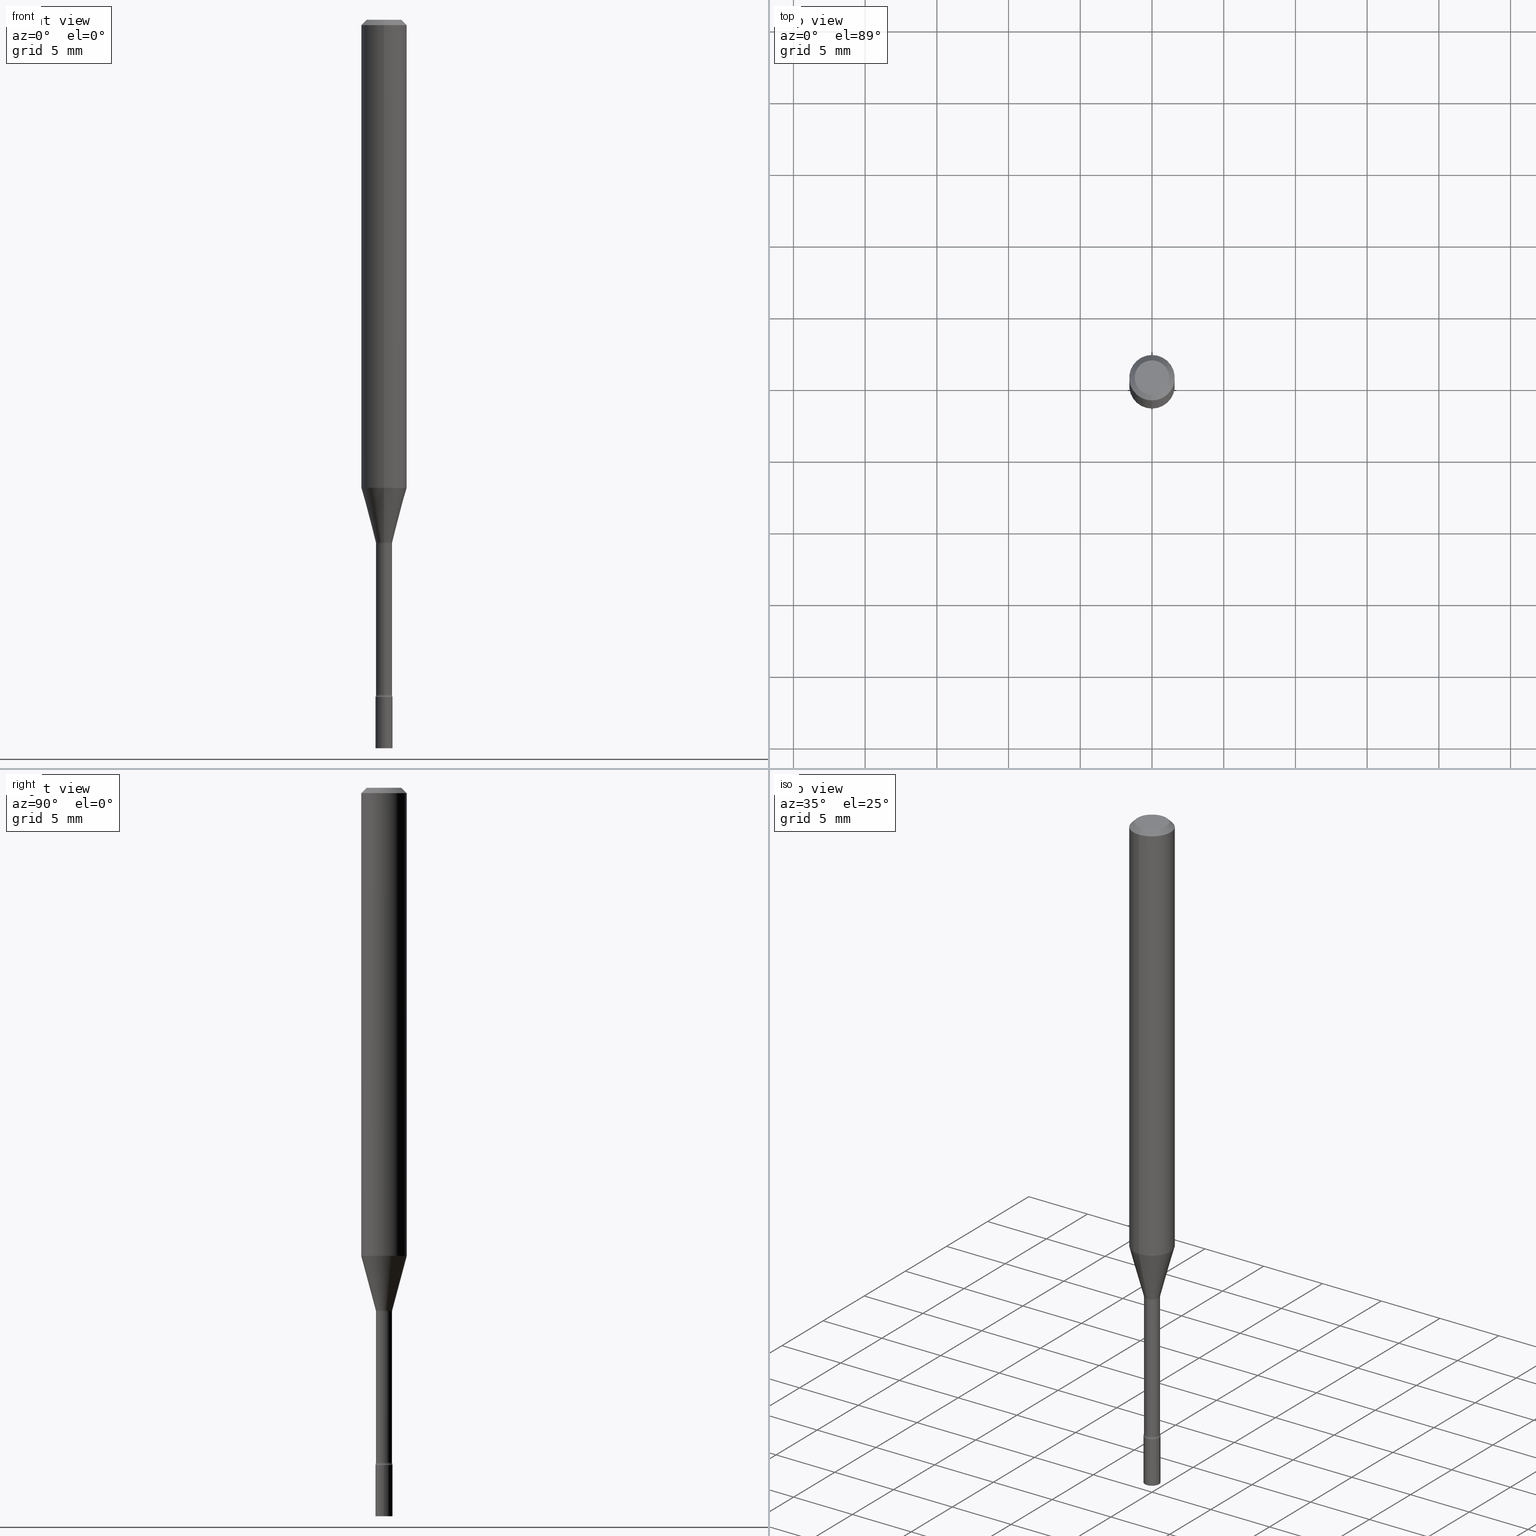
[diagram: canonical four-view strip — front | top / right | iso, engineering-drawing reading convention]
A machine part, canonical four-view strip (front | top / right | iso — engineering-drawing reading convention). The complete STEP part file that produces these views, byte-faithful:
ISO-10303-21;
HEADER;
FILE_DESCRIPTION (( 'STEP AP203' ),
    '1' );
FILE_NAME ('03490.STEP',
    '2024-03-08T21:31:33',
    ( '' ),
    ( '' ),
    'SwSTEP 2.0',
    'SolidWorks 2023',
    '' );
FILE_SCHEMA (( 'CONFIG_CONTROL_DESIGN' ));
ENDSEC;

DATA;
#1 = VERTEX_POINT ( 'NONE', #31 ) ;
#2 = CIRCLE ( 'NONE', #288, 0.02350000000000000352 ) ;
#3 = CARTESIAN_POINT ( 'NONE',  ( 0.000000000000000000, 0.000000000000000000, 0.000000000000000000 ) ) ;
#4 = VERTEX_POINT ( 'NONE', #500 ) ;
#5 = DIRECTION ( 'NONE',  ( -6.982962677686265922E-15, -1.000000000000000000, 3.491509281593031965E-15 ) ) ;
#6 = CLOSED_SHELL ( 'NONE', ( #150, #62, #453, #18 ) ) ;
#7 = AXIS2_PLACEMENT_3D ( 'NONE', #127, #239, #491 ) ;
#8 = CYLINDRICAL_SURFACE ( 'NONE', #52, 0.02210000000000003281 ) ;
#9 = ADVANCED_FACE ( 'NONE', ( #424 ), #347, .F. ) ;
#10 = CARTESIAN_POINT ( 'NONE',  ( 3.840629472727447874E-16, 0.04749999999999999362, -1.947592745229184119E-16 ) ) ;
#11 = CARTESIAN_POINT ( 'NONE',  ( 4.890937612370273194E-29, -6.982962677686291165E-15, -2.000000000000000000 ) ) ;
#12 = DIRECTION ( 'NONE',  ( -6.982962677686265922E-15, -1.000000000000000000, 0.000000000000000000 ) ) ;
#13 = DIRECTION ( 'NONE',  ( -2.445449293867179508E-29, 3.491509281593031965E-15, 1.000000000000000000 ) ) ;
#14 = CIRCLE ( 'NONE', #24, 0.01500000000000002373 ) ;
#15 = CIRCLE ( 'NONE', #255, 0.04749999999999999362 ) ;
#16 = DIRECTION ( 'NONE',  ( -2.445449293867179788E-29, 3.491509281593031965E-15, 1.000000000000000000 ) ) ;
#17 = DIRECTION ( 'NONE',  ( -2.445449293867179788E-29, 3.491509281593031965E-15, 1.000000000000000000 ) ) ;
#18 = ADVANCED_FACE ( 'NONE', ( #425 ), #222, .T. ) ;
#19 = CARTESIAN_POINT ( 'NONE',  ( 3.516494428602184919E-29, -5.020702317126664173E-15, -1.437974787463811133 ) ) ;
#20 = CARTESIAN_POINT ( 'NONE',  ( 2.636113549670322806E-16, 0.03709999999999497727, -1.437974787463811133 ) ) ;
#21 = DIRECTION ( 'NONE',  ( -6.982962677686265922E-15, -1.000000000000000000, 4.370956789862821150E-15 ) ) ;
#22 = DIRECTION ( 'NONE',  ( -6.982962677686265922E-15, -1.000000000000000000, 3.491509281593031965E-15 ) ) ;
#23 = ORIENTED_EDGE ( 'NONE', *, *, #407, .F. ) ;
#24 = AXIS2_PLACEMENT_3D ( 'NONE', #412, #53, #374 ) ;
#25 = DIRECTION ( 'NONE',  ( -6.982962677686265922E-15, -1.000000000000000000, 4.370956789862821150E-15 ) ) ;
#26 = DIRECTION ( 'NONE',  ( -6.982962677686265922E-15, -1.000000000000000000, 3.491509281593031965E-15 ) ) ;
#27 = ORIENTED_EDGE ( 'NONE', *, *, #165, .F. ) ;
#28 = EDGE_CURVE ( 'NONE', #217, #343, #14, .T. ) ;
#29 = ORIENTED_EDGE ( 'NONE', *, *, #244, .F. ) ;
#30 = PERSON_AND_ORGANIZATION ( #90, #296 ) ;
#31 = CARTESIAN_POINT ( 'NONE',  ( 0.02350000000000000352, -7.147062300611918023E-15, -2.000000000000000000 ) ) ;
#32 = DIRECTION ( 'NONE',  ( -2.445449293867179508E-29, 3.491509281593031965E-15, 1.000000000000000000 ) ) ;
#33 = ORIENTED_EDGE ( 'NONE', *, *, #510, .F. ) ;
#34 = APPROVAL_STATUS ( 'not_yet_approved' ) ;
#35 = VERTEX_POINT ( 'NONE', #280 ) ;
#36 = SECURITY_CLASSIFICATION ( '', '', #194 ) ;
#37 = PERSON_AND_ORGANIZATION_ROLE ( 'classification_officer' ) ;
#38 = VECTOR ( 'NONE', #13, 39.37007874015748143 ) ;
#39 = AXIS2_PLACEMENT_3D ( 'NONE', #19, #370, #303 ) ;
#40 = EDGE_CURVE ( 'NONE', #217, #345, #483, .T. ) ;
#41 = EDGE_CURVE ( 'NONE', #434, #390, #481, .T. ) ;
#42 = EDGE_CURVE ( 'NONE', #75, #112, #157, .T. ) ;
#43 = DIRECTION ( 'NONE',  ( 1.000000000000000000, -6.982962677686269866E-15, 0.000000000000000000 ) ) ;
#44 = CARTESIAN_POINT ( 'NONE',  ( 1.570299446030275858E-16, 0.02209999999999498130, -1.437974787463811133 ) ) ;
#45 = EDGE_CURVE ( 'NONE', #340, #299, #195, .T. ) ;
#46 = AXIS2_PLACEMENT_3D ( 'NONE', #86, #50, #208 ) ;
#47 = CARTESIAN_POINT ( 'NONE',  ( 3.668173940800776741E-31, -5.237263922389558597E-17, -0.01500000000000003067 ) ) ;
#48 = DIRECTION ( 'NONE',  ( -6.982962677686265922E-15, -1.000000000000000000, 3.483106191921935554E-15 ) ) ;
#49 = EDGE_LOOP ( 'NONE', ( #177, #264 ) ) ;
#50 = DIRECTION ( 'NONE',  ( -2.445449293867179788E-29, 3.491509281593031965E-15, 1.000000000000000000 ) ) ;
#51 = CARTESIAN_POINT ( 'NONE',  ( -1.640996229255817445E-16, -0.02350000000000649139, -1.858999999999999986 ) ) ;
#52 = AXIS2_PLACEMENT_3D ( 'NONE', #206, #324, #369 ) ;
#53 = DIRECTION ( 'NONE',  ( -1.000000000000000000, 6.982962677686265922E-15, -4.883557194083112340E-29 ) ) ;
#54 = LOCAL_TIME ( 16, 31, 33.00000000000000000, #140 ) ;
#55 = CARTESIAN_POINT ( 'NONE',  ( 3.023754139721055453E-16, 0.02261111260565898395, -1.434092501787273211 ) ) ;
#56 = DIRECTION ( 'NONE',  ( 7.105427357601001859E-15, 1.000000000000000000, 0.000000000000000000 ) ) ;
#57 = DIRECTION ( 'NONE',  ( 1.000000000000000000, -6.982962677686269866E-15, 0.000000000000000000 ) ) ;
#58 = ORIENTED_EDGE ( 'NONE', *, *, #440, .F. ) ;
#59 = EDGE_CURVE ( 'NONE', #345, #340, #73, .T. ) ;
#60 = EDGE_CURVE ( 'NONE', #345, #390, #307, .T. ) ;
#61 = APPLICATION_CONTEXT ( 'configuration controlled 3d designs of mechanical parts and assemblies' ) ;
#62 = ADVANCED_FACE ( 'NONE', ( #330 ), #242, .T. ) ;
#63 = DIRECTION ( 'NONE',  ( -2.445449293867179788E-29, 3.491509281593031965E-15, 1.000000000000000000 ) ) ;
#64 = CYLINDRICAL_SURFACE ( 'NONE', #461, 0.06250000000000000000 ) ;
#65 = AXIS2_PLACEMENT_3D ( 'NONE', #258, #260, #213 ) ;
#66 = CC_DESIGN_APPROVAL ( #358, ( #283 ) ) ;
#67 = ORIENTED_EDGE ( 'NONE', *, *, #492, .T. ) ;
#68 = APPROVAL_DATE_TIME ( #145, #471 ) ;
#69 = ORIENTED_EDGE ( 'NONE', *, *, #355, .F. ) ;
#70 = ORIENTED_EDGE ( 'NONE', *, *, #42, .F. ) ;
#71 = ORIENTED_EDGE ( 'NONE', *, *, #59, .T. ) ;
#72 = DIRECTION ( 'NONE',  ( 0.000000000000000000, 0.000000000000000000, 1.000000000000000000 ) ) ;
#73 = CIRCLE ( 'NONE', #426, 0.06250000000000000000 ) ;
#74 = CALENDAR_DATE ( 2024, 8, 3 ) ;
#75 = VERTEX_POINT ( 'NONE', #401 ) ;
#76 = APPROVAL_ROLE ( '' ) ;
#77 = EDGE_CURVE ( 'NONE', #105, #299, #284, .T. ) ;
#78 = PRODUCT ( '03490', '03490', '', ( #388 ) ) ;
#79 = AXIS2_PLACEMENT_3D ( 'NONE', #415, #411, #56 ) ;
#80 = DIRECTION ( 'NONE',  ( 1.839019923739599526E-15, 0.2588190451025248473, 0.9659258262890673130 ) ) ;
#81 = LINE ( 'NONE', #488, #323 ) ;
#82 = AXIS2_PLACEMENT_3D ( 'NONE', #403, #204, #5 ) ;
#83 = DIRECTION ( 'NONE',  ( -2.445449293867179788E-29, 3.491509281593031965E-15, 1.000000000000000000 ) ) ;
#84 = CARTESIAN_POINT ( 'NONE',  ( 4.364351673553919652E-16, 0.06249999999999995143, -0.01500000000000024751 ) ) ;
#85 = ORIENTED_EDGE ( 'NONE', *, *, #417, .F. ) ;
#86 = CARTESIAN_POINT ( 'NONE',  ( 3.507000495835905088E-29, -5.007147280653236604E-15, -1.434092501787273211 ) ) ;
#87 = CC_DESIGN_PERSON_AND_ORGANIZATION_ASSIGNMENT ( #188, #147, ( #378 ) ) ;
#88 = DIRECTION ( 'NONE',  ( 2.445449293867179508E-29, -3.491509281593031965E-15, -1.000000000000000000 ) ) ;
#89 = DIRECTION ( 'NONE',  ( -2.445449293867179788E-29, 3.491509281593031965E-15, 1.000000000000000000 ) ) ;
#90 = PERSON ( 'UNSPECIFIED', 'UNSPECIFIED', 'UNSPECIFIED', ('UNSPECIFIED'), ('UNSPECIFIED'), ('UNSPECIFIED') ) ;
#91 = DIRECTION ( 'NONE',  ( -2.445468806185136597E-29, 3.491481338843145583E-15, 1.000000000000000000 ) ) ;
#92 = ORIENTED_EDGE ( 'NONE', *, *, #125, .F. ) ;
#93 = VECTOR ( 'NONE', #385, 39.37007874015748143 ) ;
#94 = DIRECTION ( 'NONE',  ( -2.445449293867179788E-29, 3.491509281593031965E-15, 1.000000000000000000 ) ) ;
#95 = CARTESIAN_POINT ( 'NONE',  ( 3.507000495835905088E-29, -5.007147280653236604E-15, -1.434092501787273211 ) ) ;
#96 = ORIENTED_EDGE ( 'NONE', *, *, #97, .F. ) ;
#97 = EDGE_CURVE ( 'NONE', #427, #4, #436, .T. ) ;
#98 = CARTESIAN_POINT ( 'NONE',  ( 3.316907271900976096E-16, 0.04749999999999999362, -1.803029826992936988E-16 ) ) ;
#99 = CARTESIAN_POINT ( 'NONE',  ( 3.516522486823451947E-29, -5.020662136156834766E-15, -1.437974787463811133 ) ) ;
#100 = ORIENTED_EDGE ( 'NONE', *, *, #440, .T. ) ;
#101 = LINE ( 'NONE', #172, #104 ) ;
#102 = ORIENTED_EDGE ( 'NONE', *, *, #28, .T. ) ;
#103 = AXIS2_PLACEMENT_3D ( 'NONE', #99, #339, #423 ) ;
#104 = VECTOR ( 'NONE', #128, 39.37007874015748143 ) ;
#105 = VERTEX_POINT ( 'NONE', #10 ) ;
#106 = PERSON_AND_ORGANIZATION ( #90, #296 ) ;
#107 = ORIENTED_EDGE ( 'NONE', *, *, #45, .T. ) ;
#108 =( NAMED_UNIT ( * ) PLANE_ANGLE_UNIT ( ) SI_UNIT ( $, .RADIAN. ) );
#109 = PERSON_AND_ORGANIZATION ( #90, #296 ) ;
#110 = AXIS2_PLACEMENT_3D ( 'NONE', #362, #246, #493 ) ;
#111 = AXIS2_PLACEMENT_3D ( 'NONE', #212, #375, #21 ) ;
#112 = VERTEX_POINT ( 'NONE', #44 ) ;
#113 = DIRECTION ( 'NONE',  ( -4.851104656540964275E-15, -0.7071067811865500152, -0.7071067811865450192 ) ) ;
#114 = APPLICATION_PROTOCOL_DEFINITION ( 'international standard', 'config_control_design', 1994, #61 ) ;
#115 = EDGE_CURVE ( 'NONE', #299, #390, #117, .T. ) ;
#116 = COORDINATED_UNIVERSAL_TIME_OFFSET ( 5, 0, .BEHIND. ) ;
#117 = CIRCLE ( 'NONE', #413, 0.06250000000000000000 ) ;
#118 = CARTESIAN_POINT ( 'NONE',  ( -4.364351673553916201E-16, -0.06250000000000000000, 2.182193300995644978E-16 ) ) ;
#119 = DIRECTION ( 'NONE',  ( -2.445449293867179788E-29, 3.491509281593031965E-15, 1.000000000000000000 ) ) ;
#120 = DIRECTION ( 'NONE',  ( -2.445468806185136597E-29, 3.491481338843145583E-15, 1.000000000000000000 ) ) ;
#121 = CONICAL_SURFACE ( 'NONE', #142, 0.02261111260566398690, 0.2617993877991501295 ) ;
#122 = LINE ( 'NONE', #290, #451 ) ;
#123 = EDGE_CURVE ( 'NONE', #75, #35, #152, .T. ) ;
#124 = ADVANCED_FACE ( 'NONE', ( #449 ), #292, .F. ) ;
#125 = EDGE_CURVE ( 'NONE', #1, #4, #122, .T. ) ;
#126 = DIRECTION ( 'NONE',  ( -2.445449293867179788E-29, 3.491509281593031965E-15, 1.000000000000000000 ) ) ;
#127 = CARTESIAN_POINT ( 'NONE',  ( 3.668173940800776741E-31, -5.237263922389558597E-17, -0.01500000000000003067 ) ) ;
#128 = DIRECTION ( 'NONE',  ( -2.445449293867179508E-29, 3.491509281593031965E-15, 1.000000000000000000 ) ) ;
#129 = DIRECTION ( 'NONE',  ( 1.000000000000000000, -7.105427357601001070E-15, 4.926315850742074732E-29 ) ) ;
#130 = EDGE_CURVE ( 'NONE', #105, #434, #189, .T. ) ;
#131 = CARTESIAN_POINT ( 'NONE',  ( 3.516522486823451947E-29, -5.020662136156834766E-15, -1.437974787463811133 ) ) ;
#132 = CARTESIAN_POINT ( 'NONE',  ( 4.440892098500937762E-16, 0.06249999999999548278, -1.285225147374218224 ) ) ;
#133 = ORIENTED_EDGE ( 'NONE', *, *, #468, .T. ) ;
#134 = VECTOR ( 'NONE', #429, 39.37007874015749564 ) ;
#135 = AXIS2_PLACEMENT_3D ( 'NONE', #256, #267, #410 ) ;
#136 = CYLINDRICAL_SURFACE ( 'NONE', #394, 0.02210000000000003281 ) ;
#137 = FACE_OUTER_BOUND ( 'NONE', #442, .T. ) ;
#138 = EDGE_LOOP ( 'NONE', ( #377, #67, #335, #154 ) ) ;
#139 = ORIENTED_EDGE ( 'NONE', *, *, #77, .F. ) ;
#140 = COORDINATED_UNIVERSAL_TIME_OFFSET ( 5, 0, .BEHIND. ) ;
#141 = EDGE_LOOP ( 'NONE', ( #227, #387 ) ) ;
#142 = AXIS2_PLACEMENT_3D ( 'NONE', #95, #301, #298 ) ;
#143 = TOROIDAL_SURFACE ( 'NONE', #135, 0.03710000000000005654, 0.01499999999999999077 ) ;
#144 = ORIENTED_EDGE ( 'NONE', *, *, #186, .T. ) ;
#145 = DATE_AND_TIME ( #278, #308 ) ;
#146 = ORIENTED_EDGE ( 'NONE', *, *, #439, .F. ) ;
#147 = PERSON_AND_ORGANIZATION_ROLE ( 'creator' ) ;
#148 = CARTESIAN_POINT ( 'NONE',  ( 1.570299446029823249E-16, 0.02210000000000003281, -7.716235512320612093E-17 ) ) ;
#149 = EDGE_CURVE ( 'NONE', #485, #340, #81, .T. ) ;
#150 = ADVANCED_FACE ( 'NONE', ( #368 ), #163, .T. ) ;
#151 = EDGE_CURVE ( 'NONE', #485, #217, #160, .T. ) ;
#152 = CIRCLE ( 'NONE', #110, 0.02210000000000006057 ) ;
#153 = AXIS2_PLACEMENT_3D ( 'NONE', #3, #72, #226 ) ;
#154 = ORIENTED_EDGE ( 'NONE', *, *, #115, .F. ) ;
#155 = DATE_AND_TIME ( #516, #54 ) ;
#156 = ORIENTED_EDGE ( 'NONE', *, *, #468, .F. ) ;
#157 = LINE ( 'NONE', #148, #445 ) ;
#158 = CARTESIAN_POINT ( 'NONE',  ( 0.000000000000000000, 0.000000000000000000, 0.000000000000000000 ) ) ;
#159 = CC_DESIGN_PERSON_AND_ORGANIZATION_ASSIGNMENT ( #353, #357, ( #283 ) ) ;
#160 = CIRCLE ( 'NONE', #503, 0.02261111260566398690 ) ;
#161 = AXIS2_PLACEMENT_3D ( 'NONE', #329, #63, #414 ) ;
#162 = DIRECTION ( 'NONE',  ( -2.445449293867179788E-29, 3.491509281593031965E-15, 1.000000000000000000 ) ) ;
#163 = CYLINDRICAL_SURFACE ( 'NONE', #514, 0.02350000000000000352 ) ;
#164 = DESIGN_CONTEXT ( 'detailed design', #61, 'design' ) ;
#165 = EDGE_CURVE ( 'NONE', #35, #75, #201, .T. ) ;
#166 = ADVANCED_FACE ( 'NONE', ( #365 ), #273, .T. ) ;
#167 = CARTESIAN_POINT ( 'NONE',  ( -0.02350000000000000352, -6.569835700394226398E-15, -2.000000000000000000 ) ) ;
#168 = AXIS2_PLACEMENT_3D ( 'NONE', #502, #17, #26 ) ;
#169 = CIRCLE ( 'NONE', #446, 0.02210000000000000159 ) ;
#170 = CARTESIAN_POINT ( 'NONE',  ( 1.669775429036689529E-16, 0.02349999999999350525, -1.858999999999999986 ) ) ;
#171 = DIRECTION ( 'NONE',  ( 1.000000000000000000, -6.982962677686265922E-15, 4.876176775795935793E-29 ) ) ;
#172 = CARTESIAN_POINT ( 'NONE',  ( -1.543234751768666840E-16, -0.02210000000000003281, 7.716235512320612093E-17 ) ) ;
#173 = CARTESIAN_POINT ( 'NONE',  ( -0.02350000000000000352, 1.669775429036235687E-16, -1.155949746209903035E-30 ) ) ;
#174 = ADVANCED_FACE ( 'NONE', ( #448 ), #8, .T. ) ;
#175 = DIRECTION ( 'NONE',  ( -6.982962677686265922E-15, -1.000000000000000000, 0.000000000000000000 ) ) ;
#176 = DIRECTION ( 'NONE',  ( 7.105427357600997914E-15, 1.000000000000000000, 0.000000000000000000 ) ) ;
#177 = ORIENTED_EDGE ( 'NONE', *, *, #477, .T. ) ;
#178 = FACE_OUTER_BOUND ( 'NONE', #354, .T. ) ;
#179 = CARTESIAN_POINT ( 'NONE',  ( -4.364351673553912750E-16, -0.06250000000000005551, -0.01499999999999981209 ) ) ;
#180 = ORIENTED_EDGE ( 'NONE', *, *, #478, .T. ) ;
#181 = APPROVAL_PERSON_ORGANIZATION ( #233, #358, #76 ) ;
#182 = LENGTH_MEASURE_WITH_UNIT ( LENGTH_MEASURE( 0.02539999999999999897 ), #418 );
#183 = FACE_OUTER_BOUND ( 'NONE', #234, .T. ) ;
#184 = EDGE_LOOP ( 'NONE', ( #29, #27, #433, #133 ) ) ;
#185 = APPROVAL_DATE_TIME ( #443, #257 ) ;
#186 = EDGE_CURVE ( 'NONE', #187, #1, #2, .T. ) ;
#187 = VERTEX_POINT ( 'NONE', #167 ) ;
#188 = PERSON_AND_ORGANIZATION ( #90, #296 ) ;
#189 = CIRCLE ( 'NONE', #327, 0.04749999999999999362 ) ;
#190 = ORIENTED_EDGE ( 'NONE', *, *, #244, .T. ) ;
#191 = DATE_AND_TIME ( #520, #289 ) ;
#192 = ORIENTED_EDGE ( 'NONE', *, *, #321, .F. ) ;
#193 = CC_DESIGN_PERSON_AND_ORGANIZATION_ASSIGNMENT ( #109, #349, ( #283 ) ) ;
#194 = SECURITY_CLASSIFICATION_LEVEL ( 'unclassified' ) ;
#195 = LINE ( 'NONE', #389, #494 ) ;
#196 = PERSON_AND_ORGANIZATION ( #90, #296 ) ;
#197 = AXIS2_PLACEMENT_3D ( 'NONE', #325, #119, #454 ) ;
#198 = AXIS2_PLACEMENT_3D ( 'NONE', #338, #262, #458 ) ;
#199 = DIRECTION ( 'NONE',  ( -2.445449293867179788E-29, 3.491509281593031965E-15, 1.000000000000000000 ) ) ;
#200 = DIRECTION ( 'NONE',  ( -2.445449293867179788E-29, 3.491509281593031965E-15, 1.000000000000000000 ) ) ;
#201 = CIRCLE ( 'NONE', #197, 0.02210000000000006057 ) ;
#202 = CIRCLE ( 'NONE', #161, 0.02261111260566398690 ) ;
#203 = CARTESIAN_POINT ( 'NONE',  ( 3.142952929106623298E-29, -4.487375530993854275E-15, -1.285225147374218002 ) ) ;
#204 = DIRECTION ( 'NONE',  ( -2.445449293867179508E-29, 3.491509281593031965E-15, 1.000000000000000000 ) ) ;
#205 = ADVANCED_FACE ( 'NONE', ( #326 ), #359, .T. ) ;
#206 = CARTESIAN_POINT ( 'NONE',  ( 0.000000000000000000, 0.000000000000000000, 0.000000000000000000 ) ) ;
#207 = CARTESIAN_POINT ( 'NONE',  ( -2.590679153421155323E-16, -0.03710000000000652359, -1.852672283192177582 ) ) ;
#208 = DIRECTION ( 'NONE',  ( -6.982962677686265922E-15, -1.000000000000000000, 0.000000000000000000 ) ) ;
#209 = CIRCLE ( 'NONE', #282, 0.06250000000000000000 ) ;
#210 = CYLINDRICAL_SURFACE ( 'NONE', #198, 0.02350000000000000352 ) ;
#211 = CARTESIAN_POINT ( 'NONE',  ( -1.578925554262780210E-16, -0.02261111260566899331, -1.434092501787273211 ) ) ;
#212 = CARTESIAN_POINT ( 'NONE',  ( 3.142952929106623298E-29, -4.487375530993854275E-15, -1.285225147374218002 ) ) ;
#213 = DIRECTION ( 'NONE',  ( 6.982962677686265922E-15, 1.000000000000000000, -3.483106191921935554E-15 ) ) ;
#214 = ORIENTED_EDGE ( 'NONE', *, *, #60, .F. ) ;
#215 = CARTESIAN_POINT ( 'NONE',  ( 0.000000000000000000, 0.000000000000000000, 0.000000000000000000 ) ) ;
#216 = CARTESIAN_POINT ( 'NONE',  ( -1.543234751768313332E-16, -0.02210000000000502188, -1.437974787463811133 ) ) ;
#217 = VERTEX_POINT ( 'NONE', #211 ) ;
#218 = PLANE ( 'NONE',  #367 ) ;
#219 = DIRECTION ( 'NONE',  ( -2.445449293867179788E-29, 3.491509281593031965E-15, 1.000000000000000000 ) ) ;
#220 = ORIENTED_EDGE ( 'NONE', *, *, #407, .T. ) ;
#221 = AXIS2_PLACEMENT_3D ( 'NONE', #131, #126, #331 ) ;
#222 = PLANE ( 'NONE',  #382 ) ;
#223 = EDGE_LOOP ( 'NONE', ( #392, #144, #511, #96 ) ) ;
#224 = ADVANCED_FACE ( 'NONE', ( #295 ), #404, .T. ) ;
#225 = CC_DESIGN_PERSON_AND_ORGANIZATION_ASSIGNMENT ( #196, #37, ( #36 ) ) ;
#226 = DIRECTION ( 'NONE',  ( 1.000000000000000000, 0.000000000000000000, 0.000000000000000000 ) ) ;
#227 = ORIENTED_EDGE ( 'NONE', *, *, #130, .T. ) ;
#228 = DIRECTION ( 'NONE',  ( -2.445449293867179508E-29, 3.491509281593031965E-15, 1.000000000000000000 ) ) ;
#229 = EDGE_LOOP ( 'NONE', ( #513, #430, #467, #482 ) ) ;
#230 = ORIENTED_EDGE ( 'NONE', *, *, #431, .F. ) ;
#231 = TOROIDAL_SURFACE ( 'NONE', #221, 0.03710000000000000103, 0.01500000000000001853 ) ;
#232 = CC_DESIGN_DATE_AND_TIME_ASSIGNMENT ( #155, #272, ( #36 ) ) ;
#233 = PERSON_AND_ORGANIZATION ( #90, #296 ) ;
#234 = EDGE_LOOP ( 'NONE', ( #180, #269, #363, #314 ) ) ;
#235 = ORIENTED_EDGE ( 'NONE', *, *, #77, .T. ) ;
#236 = CIRCLE ( 'NONE', #79, 0.01499999999999998904 ) ;
#237 = LOCAL_TIME ( 16, 31, 33.00000000000000000, #473 ) ;
#238 = CARTESIAN_POINT ( 'NONE',  ( -1.578925554262780210E-16, -0.02261111260566899331, -1.434092501787273211 ) ) ;
#239 = DIRECTION ( 'NONE',  ( 2.445449293867179788E-29, -3.491509281593031965E-15, -1.000000000000000000 ) ) ;
#240 = ORIENTED_EDGE ( 'NONE', *, *, #431, .T. ) ;
#241 = DIRECTION ( 'NONE',  ( -2.445468806185136597E-29, 3.491481338843145583E-15, 1.000000000000000000 ) ) ;
#242 = PLANE ( 'NONE',  #336 ) ;
#243 = ADVANCED_FACE ( 'NONE', ( #183 ), #121, .T. ) ;
#244 = EDGE_CURVE ( 'NONE', #75, #472, #236, .T. ) ;
#245 = AXIS2_PLACEMENT_3D ( 'NONE', #474, #421, #265 ) ;
#246 = DIRECTION ( 'NONE',  ( -2.445449293867179788E-29, 3.491509281593031965E-15, 1.000000000000000000 ) ) ;
#247 = APPLICATION_CONTEXT ( 'configuration controlled 3d designs of mechanical parts and assemblies' ) ;
#248 = MANIFOLD_SOLID_BREP ( 'Body-Move/Copy2[1]', #6 ) ;
#249 = CARTESIAN_POINT ( 'NONE',  ( 4.546126510698169319E-29, -6.490663808909408226E-15, -1.858999999999999986 ) ) ;
#250 = ADVANCED_FACE ( 'NONE', ( #376 ), #480, .F. ) ;
#251 = FACE_OUTER_BOUND ( 'NONE', #304, .T. ) ;
#252 = DIRECTION ( 'NONE',  ( -6.982962677686265922E-15, -1.000000000000000000, 3.483106191921935554E-15 ) ) ;
#253 = MANIFOLD_SOLID_BREP ( 'Body-Move/Copy2[2]', #316 ) ;
#254 = AXIS2_PLACEMENT_3D ( 'NONE', #334, #419, #57 ) ;
#255 = AXIS2_PLACEMENT_3D ( 'NONE', #291, #498, #333 ) ;
#256 = CARTESIAN_POINT ( 'NONE',  ( 4.530652276630265840E-29, -6.468570703757412318E-15, -1.852672283192177582 ) ) ;
#257 = APPROVAL ( #312, 'UNSPECIFIED' ) ;
#258 = CARTESIAN_POINT ( 'NONE',  ( 3.668173940800776741E-31, -5.237263922389558597E-17, -0.01500000000000003067 ) ) ;
#259 = EDGE_LOOP ( 'NONE', ( #464, #261, #235, #271 ) ) ;
#260 = DIRECTION ( 'NONE',  ( 2.445449293867179788E-29, -3.491509281593031965E-15, -1.000000000000000000 ) ) ;
#261 = ORIENTED_EDGE ( 'NONE', *, *, #130, .F. ) ;
#262 = DIRECTION ( 'NONE',  ( -2.445468806185136597E-29, 3.491481338843145583E-15, 1.000000000000000000 ) ) ;
#263 = DIRECTION ( 'NONE',  ( -6.982962677686265922E-15, -1.000000000000000000, 0.000000000000000000 ) ) ;
#264 = ORIENTED_EDGE ( 'NONE', *, *, #97, .T. ) ;
#265 = DIRECTION ( 'NONE',  ( -6.982962677686265922E-15, -1.000000000000000000, 3.491509281593031965E-15 ) ) ;
#266 = DIMENSIONAL_EXPONENTS ( 1.000000000000000000, 0.000000000000000000, 0.000000000000000000, 0.000000000000000000, 0.000000000000000000, 0.000000000000000000, 0.000000000000000000 ) ;
#267 = DIRECTION ( 'NONE',  ( -2.445449293867179788E-29, 3.491509281593031965E-15, 1.000000000000000000 ) ) ;
#268 = APPROVAL_PERSON_ORGANIZATION ( #437, #257, #277 ) ;
#269 = ORIENTED_EDGE ( 'NONE', *, *, #149, .T. ) ;
#270 = EDGE_LOOP ( 'NONE', ( #320, #279, #240, #420 ) ) ;
#271 = ORIENTED_EDGE ( 'NONE', *, *, #115, .T. ) ;
#272 = DATE_TIME_ROLE ( 'classification_date' ) ;
#273 = CONICAL_SURFACE ( 'NONE', #7, 0.06250000000000000000, 0.7853981633974483900 ) ;
#274 =( GEOMETRIC_REPRESENTATION_CONTEXT ( 3 ) GLOBAL_UNCERTAINTY_ASSIGNED_CONTEXT ( ( #455 ) ) GLOBAL_UNIT_ASSIGNED_CONTEXT ( ( #341, #108, #309 ) ) REPRESENTATION_CONTEXT ( 'NONE', 'WORKASPACE' ) );
#275 = CIRCLE ( 'NONE', #111, 0.06250000000000000000 ) ;
#276 = ORIENTED_EDGE ( 'NONE', *, *, #186, .F. ) ;
#277 = APPROVAL_ROLE ( '' ) ;
#278 = CALENDAR_DATE ( 2024, 8, 3 ) ;
#279 = ORIENTED_EDGE ( 'NONE', *, *, #302, .T. ) ;
#280 = CARTESIAN_POINT ( 'NONE',  ( -1.543234751768215957E-16, -0.02210000000000652762, -1.852672283192177582 ) ) ;
#281 = ADVANCED_FACE ( 'NONE', ( #137 ), #332, .T. ) ;
#282 = AXIS2_PLACEMENT_3D ( 'NONE', #508, #89, #252 ) ;
#283 = PRODUCT_DEFINITION_FORMATION_WITH_SPECIFIED_SOURCE ( 'ANY', '', #78, .NOT_KNOWN. ) ;
#284 = LINE ( 'NONE', #84, #348 ) ;
#285 = CC_DESIGN_DATE_AND_TIME_ASSIGNMENT ( #476, #391, ( #378 ) ) ;
#286 = DIRECTION ( 'NONE',  ( 4.937700262164548042E-15, 0.7071067811865451302, -0.7071067811865499042 ) ) ;
#287 = CARTESIAN_POINT ( 'NONE',  ( 4.546126510698169319E-29, -6.490663808909408226E-15, -1.858999999999999986 ) ) ;
#288 = AXIS2_PLACEMENT_3D ( 'NONE', #11, #120, #409 ) ;
#289 = LOCAL_TIME ( 16, 31, 33.00000000000000000, #396 ) ;
#290 = CARTESIAN_POINT ( 'NONE',  ( 0.02350000000000000352, -1.640996229256272766E-16, 1.145901542312045115E-30 ) ) ;
#291 = CARTESIAN_POINT ( 'NONE',  ( 7.070425726404183939E-46, -1.009485541592062280E-31, -2.891258364724941377E-17 ) ) ;
#292 = PLANE ( 'NONE',  #82 ) ;
#293 = DIRECTION ( 'NONE',  ( -1.000000000000000000, 6.982962677686265922E-15, -4.876176775795935793E-29 ) ) ;
#294 = DIRECTION ( 'NONE',  ( 6.982962677686265922E-15, 1.000000000000000000, -3.491509281593031965E-15 ) ) ;
#295 = FACE_OUTER_BOUND ( 'NONE', #259, .T. ) ;
#296 = ORGANIZATION ( 'UNSPECIFIED', 'UNSPECIFIED', '' ) ;
#297 = FACE_OUTER_BOUND ( 'NONE', #141, .T. ) ;
#298 = DIRECTION ( 'NONE',  ( -6.982962677686265922E-15, -1.000000000000000000, 0.000000000000000000 ) ) ;
#299 = VERTEX_POINT ( 'NONE', #499 ) ;
#300 = CARTESIAN_POINT ( 'NONE',  ( 4.546090237299087870E-29, -6.490715754481446881E-15, -1.858999999999999986 ) ) ;
#301 = DIRECTION ( 'NONE',  ( -2.445449293867179788E-29, 3.491509281593031965E-15, 1.000000000000000000 ) ) ;
#302 = EDGE_CURVE ( 'NONE', #485, #112, #399, .T. ) ;
#303 = DIRECTION ( 'NONE',  ( -6.982962677686265922E-15, -1.000000000000000000, 0.000000000000000000 ) ) ;
#304 = EDGE_LOOP ( 'NONE', ( #517, #381, #85, #58 ) ) ;
#305 = EDGE_LOOP ( 'NONE', ( #146, #479, #220, #139 ) ) ;
#306 = CIRCLE ( 'NONE', #254, 0.02350000000000000352 ) ;
#307 = LINE ( 'NONE', #118, #38 ) ;
#308 = LOCAL_TIME ( 16, 31, 33.00000000000000000, #116 ) ;
#309 =( NAMED_UNIT ( * ) SI_UNIT ( $, .STERADIAN. ) SOLID_ANGLE_UNIT ( ) );
#310 = ADVANCED_BREP_SHAPE_REPRESENTATION ( '03490', ( #248, #253, #153 ), #274 ) ;
#311 = ORIENTED_EDGE ( 'NONE', *, *, #478, .F. ) ;
#312 = APPROVAL_STATUS ( 'not_yet_approved' ) ;
#313 = ORIENTED_EDGE ( 'NONE', *, *, #398, .T. ) ;
#314 = ORIENTED_EDGE ( 'NONE', *, *, #40, .F. ) ;
#315 = APPLICATION_PROTOCOL_DEFINITION ( 'international standard', 'config_control_design', 1994, #247 ) ;
#316 = CLOSED_SHELL ( 'NONE', ( #250, #441, #447, #166, #281, #243, #205, #364, #224, #444, #124, #9, #174, #408 ) ) ;
#317 = VECTOR ( 'NONE', #113, 39.37007874015748143 ) ;
#318 = EDGE_LOOP ( 'NONE', ( #70, #519, #100, #230 ) ) ;
#319 = APPROVAL_STATUS ( 'not_yet_approved' ) ;
#320 = ORIENTED_EDGE ( 'NONE', *, *, #151, .F. ) ;
#321 = EDGE_CURVE ( 'NONE', #1, #187, #306, .T. ) ;
#322 = DIRECTION ( 'NONE',  ( 1.000000000000000000, -6.982962677686265922E-15, 4.876176775795935793E-29 ) ) ;
#323 = VECTOR ( 'NONE', #80, 39.37007874015747433 ) ;
#324 = DIRECTION ( 'NONE',  ( -2.445449293867179788E-29, 3.491509281593031965E-15, 1.000000000000000000 ) ) ;
#325 = CARTESIAN_POINT ( 'NONE',  ( 4.530616126699606657E-29, -6.468622472515642058E-15, -1.852672283192177582 ) ) ;
#326 = FACE_OUTER_BOUND ( 'NONE', #229, .T. ) ;
#327 = AXIS2_PLACEMENT_3D ( 'NONE', #489, #200, #457 ) ;
#328 = CIRCLE ( 'NONE', #39, 0.02210000000000000159 ) ;
#329 = CARTESIAN_POINT ( 'NONE',  ( 3.507000495835905088E-29, -5.007147280653236604E-15, -1.434092501787273211 ) ) ;
#330 = FACE_OUTER_BOUND ( 'NONE', #49, .T. ) ;
#331 = DIRECTION ( 'NONE',  ( -6.982962677686265922E-15, -1.000000000000000000, 3.491509281593031965E-15 ) ) ;
#332 = CYLINDRICAL_SURFACE ( 'NONE', #168, 0.06250000000000000000 ) ;
#333 = DIRECTION ( 'NONE',  ( -6.982962677686266711E-15, -1.000000000000000000, 3.491509281593031571E-15 ) ) ;
#334 = CARTESIAN_POINT ( 'NONE',  ( 4.890937612370273194E-29, -6.982962677686291165E-15, -2.000000000000000000 ) ) ;
#335 = ORIENTED_EDGE ( 'NONE', *, *, #60, .T. ) ;
#336 = AXIS2_PLACEMENT_3D ( 'NONE', #287, #450, #171 ) ;
#337 = APPROVAL_PERSON_ORGANIZATION ( #106, #471, #484 ) ;
#338 = CARTESIAN_POINT ( 'NONE',  ( 0.000000000000000000, 0.000000000000000000, 0.000000000000000000 ) ) ;
#339 = DIRECTION ( 'NONE',  ( -2.445449293867179788E-29, 3.491509281593031965E-15, 1.000000000000000000 ) ) ;
#340 = VERTEX_POINT ( 'NONE', #132 ) ;
#341 =( CONVERSION_BASED_UNIT ( 'INCH', #182 ) LENGTH_UNIT ( ) NAMED_UNIT ( #266 ) );
#342 = FACE_OUTER_BOUND ( 'NONE', #138, .T. ) ;
#343 = VERTEX_POINT ( 'NONE', #216 ) ;
#344 = CARTESIAN_POINT ( 'NONE',  ( 1.640996229256761859E-16, 0.02349999999999301953, -2.000000000000000000 ) ) ;
#345 = VERTEX_POINT ( 'NONE', #380 ) ;
#346 = ORIENTED_EDGE ( 'NONE', *, *, #477, .F. ) ;
#347 = TOROIDAL_SURFACE ( 'NONE', #245, 0.03710000000000005654, 0.01499999999999999077 ) ;
#348 = VECTOR ( 'NONE', #286, 39.37007874015748143 ) ;
#349 = PERSON_AND_ORGANIZATION_ROLE ( 'design_supplier' ) ;
#350 = CC_DESIGN_SECURITY_CLASSIFICATION ( #36, ( #283 ) ) ;
#351 = CC_DESIGN_PERSON_AND_ORGANIZATION_ASSIGNMENT ( #30, #397, ( #78 ) ) ;
#352 = ORIENTED_EDGE ( 'NONE', *, *, #355, .T. ) ;
#353 = PERSON_AND_ORGANIZATION ( #90, #296 ) ;
#354 = EDGE_LOOP ( 'NONE', ( #428, #190, #352, #33 ) ) ;
#355 = EDGE_CURVE ( 'NONE', #472, #386, #393, .T. ) ;
#356 = EDGE_LOOP ( 'NONE', ( #192, #276 ) ) ;
#357 = PERSON_AND_ORGANIZATION_ROLE ( 'creator' ) ;
#358 = APPROVAL ( #34, 'UNSPECIFIED' ) ;
#359 = CONICAL_SURFACE ( 'NONE', #46, 0.02261111260566398690, 0.2617993877991501295 ) ;
#360 = PRODUCT_DEFINITION_SHAPE ( 'NONE', 'NONE',  #378 ) ;
#361 = CARTESIAN_POINT ( 'NONE',  ( -4.287811248607203282E-16, -0.06250000000000005551, -0.01499999999999981209 ) ) ;
#362 = CARTESIAN_POINT ( 'NONE',  ( 4.530616126699606657E-29, -6.468622472515642058E-15, -1.852672283192177582 ) ) ;
#363 = ORIENTED_EDGE ( 'NONE', *, *, #59, .F. ) ;
#364 = ADVANCED_FACE ( 'NONE', ( #342 ), #64, .T. ) ;
#365 = FACE_OUTER_BOUND ( 'NONE', #305, .T. ) ;
#366 = AXIS2_PLACEMENT_3D ( 'NONE', #249, #371, #43 ) ;
#367 = AXIS2_PLACEMENT_3D ( 'NONE', #98, #88, #294 ) ;
#368 = FACE_OUTER_BOUND ( 'NONE', #435, .T. ) ;
#369 = DIRECTION ( 'NONE',  ( -6.982962677686265133E-15, -1.000000000000000000, 3.491509281593031965E-15 ) ) ;
#370 = DIRECTION ( 'NONE',  ( -2.445449293867179788E-29, 3.491509281593031965E-15, 1.000000000000000000 ) ) ;
#371 = DIRECTION ( 'NONE',  ( -2.445468806185136597E-29, 3.491481338843145583E-15, 1.000000000000000000 ) ) ;
#372 = AXIS2_PLACEMENT_3D ( 'NONE', #466, #459, #263 ) ;
#373 = FACE_OUTER_BOUND ( 'NONE', #395, .T. ) ;
#374 = DIRECTION ( 'NONE',  ( -6.982962677686262766E-15, -1.000000000000000000, 0.000000000000000000 ) ) ;
#375 = DIRECTION ( 'NONE',  ( -2.445449293867179788E-29, 3.491509281593031965E-15, 1.000000000000000000 ) ) ;
#376 = FACE_OUTER_BOUND ( 'NONE', #270, .T. ) ;
#377 = ORIENTED_EDGE ( 'NONE', *, *, #45, .F. ) ;
#378 = PRODUCT_DEFINITION ( 'UNKNOWN', '', #283, #164 ) ;
#379 = DIRECTION ( 'NONE',  ( 1.000000000000000000, -6.982962677686269866E-15, 0.000000000000000000 ) ) ;
#380 = CARTESIAN_POINT ( 'NONE',  ( -4.364351673553603615E-16, -0.06250000000000451028, -1.285225147374217780 ) ) ;
#381 = ORIENTED_EDGE ( 'NONE', *, *, #42, .T. ) ;
#382 = AXIS2_PLACEMENT_3D ( 'NONE', #344, #470, #293 ) ;
#383 = CIRCLE ( 'NONE', #438, 0.02350000000000000352 ) ;
#384 = DIRECTION ( 'NONE',  ( -1.000000000000000000, 6.982962677686265922E-15, -4.883557194083112340E-29 ) ) ;
#385 = DIRECTION ( 'NONE',  ( -2.445468806185136877E-29, 3.491481338843145188E-15, 1.000000000000000000 ) ) ;
#386 = VERTEX_POINT ( 'NONE', #51 ) ;
#387 = ORIENTED_EDGE ( 'NONE', *, *, #439, .T. ) ;
#388 = MECHANICAL_CONTEXT ( 'NONE', #247, 'mechanical' ) ;
#389 = CARTESIAN_POINT ( 'NONE',  ( 4.440892098500625669E-16, 0.06250000000000000000, -2.182193300995644978E-16 ) ) ;
#390 = VERTEX_POINT ( 'NONE', #179 ) ;
#391 = DATE_TIME_ROLE ( 'creation_date' ) ;
#392 = ORIENTED_EDGE ( 'NONE', *, *, #398, .F. ) ;
#393 = CIRCLE ( 'NONE', #372, 0.02350000000000000352 ) ;
#394 = AXIS2_PLACEMENT_3D ( 'NONE', #215, #16, #465 ) ;
#395 = EDGE_LOOP ( 'NONE', ( #460, #311, #102, #506 ) ) ;
#396 = COORDINATED_UNIVERSAL_TIME_OFFSET ( 5, 0, .BEHIND. ) ;
#397 = PERSON_AND_ORGANIZATION_ROLE ( 'design_owner' ) ;
#398 = EDGE_CURVE ( 'NONE', #187, #427, #505, .T. ) ;
#399 = CIRCLE ( 'NONE', #486, 0.01500000000000002373 ) ;
#400 = CIRCLE ( 'NONE', #495, 0.02350000000000000352 ) ;
#401 = CARTESIAN_POINT ( 'NONE',  ( 1.620037437533484049E-16, 0.02209999999999359352, -1.852672283192177582 ) ) ;
#402 = CARTESIAN_POINT ( 'NONE',  ( 3.507000495835905088E-29, -5.007147280653236604E-15, -1.434092501787273211 ) ) ;
#403 = CARTESIAN_POINT ( 'NONE',  ( 1.640996229256727347E-16, 0.02349999999999350872, -1.858999999999999986 ) ) ;
#404 = CONICAL_SURFACE ( 'NONE', #65, 0.06250000000000000000, 0.7853981633974483900 ) ;
#405 = CC_DESIGN_APPROVAL ( #471, ( #36 ) ) ;
#406 = DIRECTION ( 'NONE',  ( -2.445468806185136877E-29, 3.491481338843145188E-15, 1.000000000000000000 ) ) ;
#407 = EDGE_CURVE ( 'NONE', #390, #299, #209, .T. ) ;
#408 = ADVANCED_FACE ( 'NONE', ( #373 ), #231, .F. ) ;
#409 = DIRECTION ( 'NONE',  ( 1.000000000000000000, -6.982962677686269866E-15, 0.000000000000000000 ) ) ;
#410 = DIRECTION ( 'NONE',  ( -6.982962677686265922E-15, -1.000000000000000000, 3.491509281593031965E-15 ) ) ;
#411 = DIRECTION ( 'NONE',  ( 1.000000000000000000, -7.105427357601001070E-15, 4.926315850742074732E-29 ) ) ;
#412 = CARTESIAN_POINT ( 'NONE',  ( -2.590679153421253437E-16, -0.03710000000000501785, -1.437974787463811133 ) ) ;
#413 = AXIS2_PLACEMENT_3D ( 'NONE', #47, #199, #48 ) ;
#414 = DIRECTION ( 'NONE',  ( -6.982962677686265922E-15, -1.000000000000000000, 0.000000000000000000 ) ) ;
#415 = CARTESIAN_POINT ( 'NONE',  ( 2.636113549670428316E-16, 0.03709999999999358949, -1.852672283192177582 ) ) ;
#416 = EDGE_LOOP ( 'NONE', ( #156, #69 ) ) ;
#417 = EDGE_CURVE ( 'NONE', #343, #112, #169, .T. ) ;
#418 =( LENGTH_UNIT ( ) NAMED_UNIT ( * ) SI_UNIT ( $, .METRE. ) );
#419 = DIRECTION ( 'NONE',  ( -2.445468806185136597E-29, 3.491481338843145583E-15, 1.000000000000000000 ) ) ;
#420 = ORIENTED_EDGE ( 'NONE', *, *, #28, .F. ) ;
#421 = DIRECTION ( 'NONE',  ( -2.445449293867179788E-29, 3.491509281593031965E-15, 1.000000000000000000 ) ) ;
#422 = CARTESIAN_POINT ( 'NONE',  ( 4.546126510698169319E-29, -6.490663808909408226E-15, -1.858999999999999986 ) ) ;
#423 = DIRECTION ( 'NONE',  ( -6.982962677686265922E-15, -1.000000000000000000, 3.491509281593031965E-15 ) ) ;
#424 = FACE_OUTER_BOUND ( 'NONE', #184, .T. ) ;
#425 = FACE_OUTER_BOUND ( 'NONE', #356, .T. ) ;
#426 = AXIS2_PLACEMENT_3D ( 'NONE', #203, #83, #25 ) ;
#427 = VERTEX_POINT ( 'NONE', #496 ) ;
#428 = ORIENTED_EDGE ( 'NONE', *, *, #123, .F. ) ;
#429 = DIRECTION ( 'NONE',  ( -1.807323732225328562E-15, -0.2588190451025179639, 0.9659258262890689783 ) ) ;
#430 = ORIENTED_EDGE ( 'NONE', *, *, #151, .T. ) ;
#431 = EDGE_CURVE ( 'NONE', #112, #343, #328, .T. ) ;
#432 = APPROVAL_DATE_TIME ( #191, #358 ) ;
#433 = ORIENTED_EDGE ( 'NONE', *, *, #510, .T. ) ;
#434 = VERTEX_POINT ( 'NONE', #469 ) ;
#435 = EDGE_LOOP ( 'NONE', ( #509, #313, #346, #92 ) ) ;
#436 = CIRCLE ( 'NONE', #366, 0.02350000000000000352 ) ;
#437 = PERSON_AND_ORGANIZATION ( #90, #296 ) ;
#438 = AXIS2_PLACEMENT_3D ( 'NONE', #422, #91, #379 ) ;
#439 = EDGE_CURVE ( 'NONE', #434, #105, #15, .T. ) ;
#440 = EDGE_CURVE ( 'NONE', #35, #343, #101, .T. ) ;
#441 = ADVANCED_FACE ( 'NONE', ( #251 ), #136, .T. ) ;
#442 = EDGE_LOOP ( 'NONE', ( #71, #107, #23, #214 ) ) ;
#443 = DATE_AND_TIME ( #74, #452 ) ;
#444 = ADVANCED_FACE ( 'NONE', ( #297 ), #218, .F. ) ;
#445 = VECTOR ( 'NONE', #228, 39.37007874015748143 ) ;
#446 = AXIS2_PLACEMENT_3D ( 'NONE', #456, #501, #175 ) ;
#447 = ADVANCED_FACE ( 'NONE', ( #178 ), #143, .F. ) ;
#448 = FACE_OUTER_BOUND ( 'NONE', #318, .T. ) ;
#449 = FACE_OUTER_BOUND ( 'NONE', #416, .T. ) ;
#450 = DIRECTION ( 'NONE',  ( -2.438088387897960049E-29, 3.491481338843145188E-15, 1.000000000000000000 ) ) ;
#451 = VECTOR ( 'NONE', #406, 39.37007874015748143 ) ;
#452 = LOCAL_TIME ( 16, 31, 33.00000000000000000, #518 ) ;
#453 = ADVANCED_FACE ( 'NONE', ( #462 ), #210, .T. ) ;
#454 = DIRECTION ( 'NONE',  ( -6.982962677686265922E-15, -1.000000000000000000, 0.000000000000000000 ) ) ;
#455 = UNCERTAINTY_MEASURE_WITH_UNIT (LENGTH_MEASURE( 1.000000000000000082E-05 ), #341, 'distance_accuracy_value', 'NONE');
#456 = CARTESIAN_POINT ( 'NONE',  ( 3.516494428602184919E-29, -5.020702317126664173E-15, -1.437974787463811133 ) ) ;
#457 = DIRECTION ( 'NONE',  ( -6.982962677686266711E-15, -1.000000000000000000, 3.491509281593031571E-15 ) ) ;
#458 = DIRECTION ( 'NONE',  ( 1.000000000000000000, -6.982962677686265922E-15, 4.876176775795935793E-29 ) ) ;
#459 = DIRECTION ( 'NONE',  ( -2.445449293867179788E-29, 3.491509281593031965E-15, 1.000000000000000000 ) ) ;
#460 = ORIENTED_EDGE ( 'NONE', *, *, #302, .F. ) ;
#461 = AXIS2_PLACEMENT_3D ( 'NONE', #463, #219, #22 ) ;
#462 = FACE_OUTER_BOUND ( 'NONE', #223, .T. ) ;
#463 = CARTESIAN_POINT ( 'NONE',  ( 0.000000000000000000, 0.000000000000000000, 0.000000000000000000 ) ) ;
#464 = ORIENTED_EDGE ( 'NONE', *, *, #41, .F. ) ;
#465 = DIRECTION ( 'NONE',  ( -6.982962677686265133E-15, -1.000000000000000000, 3.491509281593031965E-15 ) ) ;
#466 = CARTESIAN_POINT ( 'NONE',  ( 4.546090237299087870E-29, -6.490715754481446881E-15, -1.858999999999999986 ) ) ;
#467 = ORIENTED_EDGE ( 'NONE', *, *, #40, .T. ) ;
#468 = EDGE_CURVE ( 'NONE', #386, #472, #400, .T. ) ;
#469 = CARTESIAN_POINT ( 'NONE',  ( -3.773273898774340269E-16, -0.04749999999999999362, 1.369341072284195844E-16 ) ) ;
#470 = DIRECTION ( 'NONE',  ( 2.438088387897960049E-29, -3.491481338843145188E-15, -1.000000000000000000 ) ) ;
#471 = APPROVAL ( #319, 'UNSPECIFIED' ) ;
#472 = VERTEX_POINT ( 'NONE', #170 ) ;
#473 = COORDINATED_UNIVERSAL_TIME_OFFSET ( 5, 0, .BEHIND. ) ;
#474 = CARTESIAN_POINT ( 'NONE',  ( 4.530652276630265840E-29, -6.468570703757412318E-15, -1.852672283192177582 ) ) ;
#475 = SHAPE_DEFINITION_REPRESENTATION ( #360, #310 ) ;
#476 = DATE_AND_TIME ( #512, #237 ) ;
#477 = EDGE_CURVE ( 'NONE', #4, #427, #383, .T. ) ;
#478 = EDGE_CURVE ( 'NONE', #217, #485, #202, .T. ) ;
#479 = ORIENTED_EDGE ( 'NONE', *, *, #41, .T. ) ;
#480 = TOROIDAL_SURFACE ( 'NONE', #103, 0.03710000000000000103, 0.01500000000000001853 ) ;
#481 = LINE ( 'NONE', #361, #317 ) ;
#482 = ORIENTED_EDGE ( 'NONE', *, *, #492, .F. ) ;
#483 = LINE ( 'NONE', #238, #134 ) ;
#484 = APPROVAL_ROLE ( '' ) ;
#485 = VERTEX_POINT ( 'NONE', #55 ) ;
#486 = AXIS2_PLACEMENT_3D ( 'NONE', #20, #129, #176 ) ;
#487 = CIRCLE ( 'NONE', #504, 0.01499999999999998904 ) ;
#488 = CARTESIAN_POINT ( 'NONE',  ( 1.606616180941167967E-16, 0.02261111260565898048, -1.434092501787273211 ) ) ;
#489 = CARTESIAN_POINT ( 'NONE',  ( 7.070425726404183939E-46, -1.009485541592062280E-31, -2.891258364724941377E-17 ) ) ;
#490 = PRODUCT_RELATED_PRODUCT_CATEGORY ( 'detail', '', ( #78 ) ) ;
#491 = DIRECTION ( 'NONE',  ( 6.982962677686265922E-15, 1.000000000000000000, -3.483106191921935554E-15 ) ) ;
#492 = EDGE_CURVE ( 'NONE', #340, #345, #275, .T. ) ;
#493 = DIRECTION ( 'NONE',  ( -6.982962677686265922E-15, -1.000000000000000000, 0.000000000000000000 ) ) ;
#494 = VECTOR ( 'NONE', #32, 39.37007874015748143 ) ;
#495 = AXIS2_PLACEMENT_3D ( 'NONE', #300, #94, #12 ) ;
#496 = CARTESIAN_POINT ( 'NONE',  ( -0.02350000000000000352, -6.569835700394226398E-15, -1.858999999999999986 ) ) ;
#497 = DIRECTION ( 'NONE',  ( -6.982962677686265922E-15, -1.000000000000000000, 0.000000000000000000 ) ) ;
#498 = DIRECTION ( 'NONE',  ( -2.445449293867179788E-29, 3.491509281593031965E-15, 1.000000000000000000 ) ) ;
#499 = CARTESIAN_POINT ( 'NONE',  ( 4.440892098500941706E-16, 0.06249999999999995143, -0.01500000000000024751 ) ) ;
#500 = CARTESIAN_POINT ( 'NONE',  ( 0.02350000000000000352, -6.654763431835035084E-15, -1.858999999999999986 ) ) ;
#501 = DIRECTION ( 'NONE',  ( -2.445449293867179788E-29, 3.491509281593031965E-15, 1.000000000000000000 ) ) ;
#502 = CARTESIAN_POINT ( 'NONE',  ( 0.000000000000000000, 0.000000000000000000, 0.000000000000000000 ) ) ;
#503 = AXIS2_PLACEMENT_3D ( 'NONE', #402, #162, #497 ) ;
#504 = AXIS2_PLACEMENT_3D ( 'NONE', #207, #384, #507 ) ;
#505 = LINE ( 'NONE', #173, #93 ) ;
#506 = ORIENTED_EDGE ( 'NONE', *, *, #417, .T. ) ;
#507 = DIRECTION ( 'NONE',  ( -6.982962677686269077E-15, -1.000000000000000000, 0.000000000000000000 ) ) ;
#508 = CARTESIAN_POINT ( 'NONE',  ( 3.668173940800776741E-31, -5.237263922389558597E-17, -0.01500000000000003067 ) ) ;
#509 = ORIENTED_EDGE ( 'NONE', *, *, #321, .T. ) ;
#510 = EDGE_CURVE ( 'NONE', #35, #386, #487, .T. ) ;
#511 = ORIENTED_EDGE ( 'NONE', *, *, #125, .T. ) ;
#512 = CALENDAR_DATE ( 2024, 8, 3 ) ;
#513 = ORIENTED_EDGE ( 'NONE', *, *, #149, .F. ) ;
#514 = AXIS2_PLACEMENT_3D ( 'NONE', #158, #241, #322 ) ;
#515 = CC_DESIGN_APPROVAL ( #257, ( #378 ) ) ;
#516 = CALENDAR_DATE ( 2024, 8, 3 ) ;
#517 = ORIENTED_EDGE ( 'NONE', *, *, #165, .T. ) ;
#518 = COORDINATED_UNIVERSAL_TIME_OFFSET ( 5, 0, .BEHIND. ) ;
#519 = ORIENTED_EDGE ( 'NONE', *, *, #123, .T. ) ;
#520 = CALENDAR_DATE ( 2024, 8, 3 ) ;
ENDSEC;
END-ISO-10303-21;
